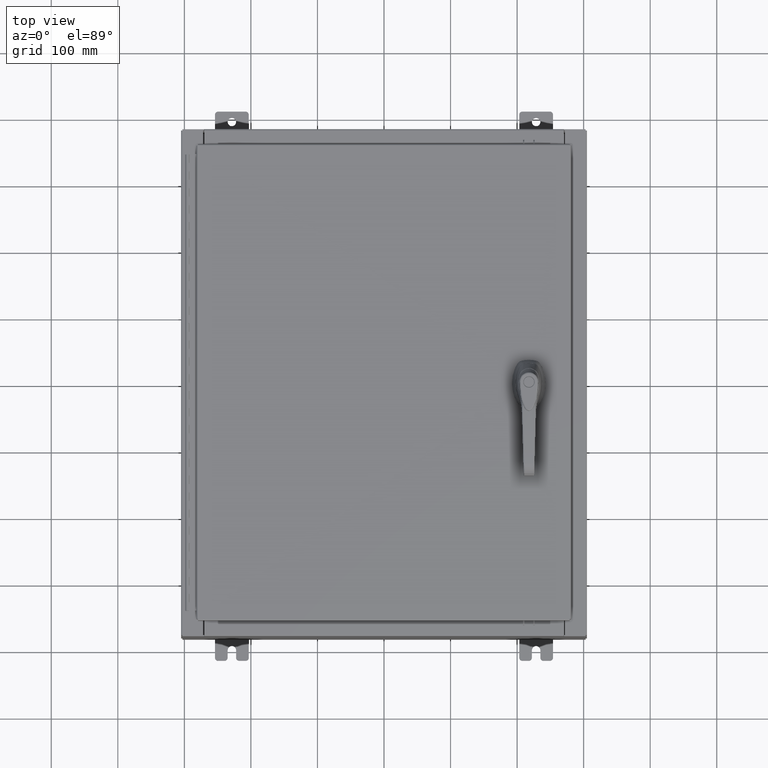
[diagram: clean part render]
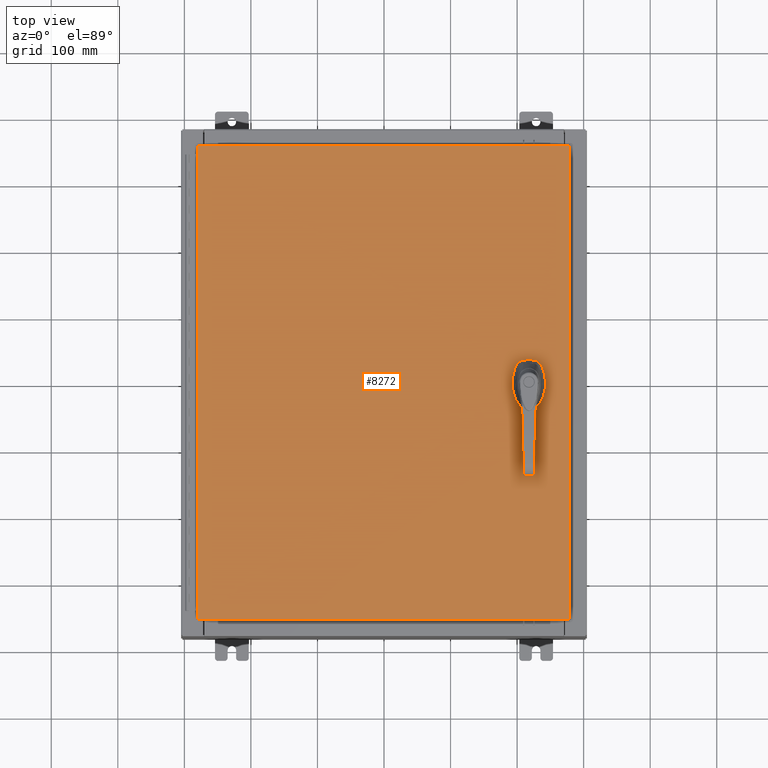
[diagram: same view with one face highlighted and labeled with its STEP entity id]
A machine part, top view. The second image highlights one B-rep face of the part: STEP entity #8272.
In plain terms, the highlighted planar face has unit normal (0, 0, -1).
Its self-contained STEP definition (entity closure, byte-faithful):
#1153 = VERTEX_POINT ( 'NONE', #46878 ) ;
#1626 = CARTESIAN_POINT ( 'NONE',  ( 8.377772629243690300, 0.4029999999999252000, 0.0000000000000000000 ) ) ;
#4411 = VERTEX_POINT ( 'NONE', #97863 ) ;
#4832 = LINE ( 'NONE', #64837, #26369 ) ;
#5099 = LINE ( 'NONE', #32219, #118235 ) ;
#6266 = AXIS2_PLACEMENT_3D ( 'NONE', #37812, #101780, #47035 ) ;
#6530 = VERTEX_POINT ( 'NONE', #94662 ) ;
#7036 = CIRCLE ( 'NONE', #97267, 0.1715000000000011500 ) ;
#7311 = VERTEX_POINT ( 'NONE', #26884 ) ;
#8260 = VECTOR ( 'NONE', #50815, 39.37007874015748100 ) ;
#8272 = ADVANCED_FACE ( 'NONE', ( #22719, #47212, #117240 ), #65126, .F. ) ;
#15552 = ORIENTED_EDGE ( 'NONE', *, *, #113381, .F. ) ;
#16617 = ORIENTED_EDGE ( 'NONE', *, *, #41307, .T. ) ;
#17948 = EDGE_CURVE ( 'NONE', #66367, #7311, #40422, .T. ) ;
#18593 = VECTOR ( 'NONE', #112074, 39.37007874015748100 ) ;
#19685 = EDGE_CURVE ( 'NONE', #44409, #1153, #27407, .T. ) ;
#20590 = EDGE_CURVE ( 'NONE', #105680, #4411, #70240, .T. ) ;
#22719 = FACE_BOUND ( 'NONE', #27523, .T. ) ;
#23008 = DIRECTION ( 'NONE',  ( 0.0000000000000000000, 1.000000000000000000, 0.0000000000000000000 ) ) ;
#23356 = DIRECTION ( 'NONE',  ( -0.0000000000000000000, 0.0000000000000000000, 1.000000000000000000 ) ) ;
#24610 = EDGE_CURVE ( 'NONE', #6530, #55653, #46899, .T. ) ;
#25965 = VERTEX_POINT ( 'NONE', #71631 ) ;
#26351 = CARTESIAN_POINT ( 'NONE',  ( 8.577999999999999400, -1.338000000000000100, 0.0000000000000000000 ) ) ;
#26369 = VECTOR ( 'NONE', #46484, 39.37007874015748100 ) ;
#26504 = ORIENTED_EDGE ( 'NONE', *, *, #24610, .F. ) ;
#26884 = CARTESIAN_POINT ( 'NONE',  ( 8.377772629243690300, -0.4029999999999252000, 0.0000000000000000000 ) ) ;
#27407 = CIRCLE ( 'NONE', #92440, 0.4499999999999156900 ) ;
#27523 = EDGE_LOOP ( 'NONE', ( #26504, #66055 ) ) ;
#29581 = CARTESIAN_POINT ( 'NONE',  ( -10.99029999999999600, -14.00629999999999800, -2.219626494852214000E-016 ) ) ;
#30351 = VERTEX_POINT ( 'NONE', #1626 ) ;
#31508 = VECTOR ( 'NONE', #84683, 39.37007874015748100 ) ;
#31953 = VERTEX_POINT ( 'NONE', #80562 ) ;
#32219 = CARTESIAN_POINT ( 'NONE',  ( 10.99030000000000000, -14.00629999999999800, -2.048885995248197400E-016 ) ) ;
#34430 = LINE ( 'NONE', #43859, #104568 ) ;
#34752 = VECTOR ( 'NONE', #84074, 39.37007874015748100 ) ;
#35601 = DIRECTION ( 'NONE',  ( 1.000000000000000000, 0.0000000000000000000, 0.0000000000000000000 ) ) ;
#37693 = DIRECTION ( 'NONE',  ( -0.0000000000000000000, 0.0000000000000000000, 1.000000000000000000 ) ) ;
#37812 = CARTESIAN_POINT ( 'NONE',  ( 8.577999999999999400, 0.0000000000000000000, 0.0000000000000000000 ) ) ;
#37915 = EDGE_CURVE ( 'NONE', #7311, #94328, #34430, .T. ) ;
#38574 = VECTOR ( 'NONE', #73384, 39.37007874015748100 ) ;
#39115 = CARTESIAN_POINT ( 'NONE',  ( 8.980999999999925300, 2.450686610769032800E-014, 0.0000000000000000000 ) ) ;
#40422 = CIRCLE ( 'NONE', #63152, 0.4499999999999156900 ) ;
#41307 = EDGE_CURVE ( 'NONE', #83491, #105680, #57084, .T. ) ;
#41374 = CARTESIAN_POINT ( 'NONE',  ( 8.175000000000073500, -0.2002273707563079800, 0.0000000000000000000 ) ) ;
#41440 = LINE ( 'NONE', #91328, #38574 ) ;
#42291 = CIRCLE ( 'NONE', #78903, 0.4499999999999156900 ) ;
#42398 = EDGE_LOOP ( 'NONE', ( #92342, #84309, #84533, #74471, #49340, #15552, #77964, #60181 ) ) ;
#43859 = CARTESIAN_POINT ( 'NONE',  ( 0.0000000000000000000, -0.4029999999999252000, 0.0000000000000000000 ) ) ;
#44409 = VERTEX_POINT ( 'NONE', #107711 ) ;
#45741 = CARTESIAN_POINT ( 'NONE',  ( 8.577999999999999400, -1.338000000000000100, 0.0000000000000000000 ) ) ;
#46484 = DIRECTION ( 'NONE',  ( 0.0000000000000000000, -1.000000000000000000, 0.0000000000000000000 ) ) ;
#46766 = DIRECTION ( 'NONE',  ( -1.000000000000000000, 0.0000000000000000000, -0.0000000000000000000 ) ) ;
#46878 = CARTESIAN_POINT ( 'NONE',  ( 8.778227370756310300, 0.4029999999999252000, 0.0000000000000000000 ) ) ;
#46899 = CIRCLE ( 'NONE', #65143, 0.1715000000000011500 ) ;
#47035 = DIRECTION ( 'NONE',  ( 1.000000000000000000, 0.0000000000000000000, 0.0000000000000000000 ) ) ;
#47212 = FACE_OUTER_BOUND ( 'NONE', #90447, .T. ) ;
#47815 = CARTESIAN_POINT ( 'NONE',  ( 8.577999999999999400, 0.0000000000000000000, 0.0000000000000000000 ) ) ;
#49340 = ORIENTED_EDGE ( 'NONE', *, *, #114068, .F. ) ;
#49588 = CARTESIAN_POINT ( 'NONE',  ( 8.577999999999999400, 0.0000000000000000000, 0.0000000000000000000 ) ) ;
#50129 = EDGE_CURVE ( 'NONE', #31953, #83491, #61960, .T. ) ;
#50472 = CARTESIAN_POINT ( 'NONE',  ( 8.406499999999999400, -1.338000000000000100, 0.0000000000000000000 ) ) ;
#50647 = CARTESIAN_POINT ( 'NONE',  ( -10.99030000000000000, 14.00630000000000100, -2.048885995248197400E-016 ) ) ;
#50815 = DIRECTION ( 'NONE',  ( 0.0000000000000000000, -1.000000000000000000, 0.0000000000000000000 ) ) ;
#52032 = CIRCLE ( 'NONE', #6266, 0.4499999999999156900 ) ;
#52960 = EDGE_CURVE ( 'NONE', #44409, #109561, #104553, .T. ) ;
#54891 = DIRECTION ( 'NONE',  ( 1.000000000000000000, 0.0000000000000000000, 0.0000000000000000000 ) ) ;
#55653 = VERTEX_POINT ( 'NONE', #50472 ) ;
#56158 = ORIENTED_EDGE ( 'NONE', *, *, #65606, .T. ) ;
#57084 = LINE ( 'NONE', #77971, #8260 ) ;
#58769 = DIRECTION ( 'NONE',  ( 1.000000000000000000, 0.0000000000000000000, 0.0000000000000000000 ) ) ;
#60181 = ORIENTED_EDGE ( 'NONE', *, *, #19685, .F. ) ;
#61960 = LINE ( 'NONE', #111319, #34752 ) ;
#63152 = AXIS2_PLACEMENT_3D ( 'NONE', #47815, #23356, #69460 ) ;
#64837 = CARTESIAN_POINT ( 'NONE',  ( 8.175000000000073500, 0.0000000000000000000, 0.0000000000000000000 ) ) ;
#65126 = PLANE ( 'NONE',  #80350 ) ;
#65143 = AXIS2_PLACEMENT_3D ( 'NONE', #45741, #109710, #54891 ) ;
#65606 = EDGE_CURVE ( 'NONE', #4411, #31953, #5099, .T. ) ;
#66055 = ORIENTED_EDGE ( 'NONE', *, *, #69871, .F. ) ;
#66367 = VERTEX_POINT ( 'NONE', #41374 ) ;
#69460 = DIRECTION ( 'NONE',  ( 1.000000000000000000, 0.0000000000000000000, 0.0000000000000000000 ) ) ;
#69871 = EDGE_CURVE ( 'NONE', #55653, #6530, #7036, .T. ) ;
#70240 = LINE ( 'NONE', #29581, #18593 ) ;
#71028 = DIRECTION ( 'NONE',  ( 1.000000000000000000, 0.0000000000000000000, 0.0000000000000000000 ) ) ;
#71631 = CARTESIAN_POINT ( 'NONE',  ( 8.175000000000073500, 0.2002273707563079800, 0.0000000000000000000 ) ) ;
#73384 = DIRECTION ( 'NONE',  ( -1.000000000000000000, 0.0000000000000000000, 0.0000000000000000000 ) ) ;
#74471 = ORIENTED_EDGE ( 'NONE', *, *, #17948, .F. ) ;
#75221 = ORIENTED_EDGE ( 'NONE', *, *, #20590, .T. ) ;
#77370 = CARTESIAN_POINT ( 'NONE',  ( 8.980999999999927000, -0.2002273707563079800, 0.0000000000000000000 ) ) ;
#77964 = ORIENTED_EDGE ( 'NONE', *, *, #107403, .F. ) ;
#77971 = CARTESIAN_POINT ( 'NONE',  ( -10.99030000000000000, 14.00630000000000100, -2.048885995248197400E-016 ) ) ;
#78903 = AXIS2_PLACEMENT_3D ( 'NONE', #49588, #113592, #58769 ) ;
#80072 = CARTESIAN_POINT ( 'NONE',  ( 0.0000000000000000000, 0.0000000000000000000, 0.0000000000000000000 ) ) ;
#80350 = AXIS2_PLACEMENT_3D ( 'NONE', #80072, #109008, #46766 ) ;
#80562 = CARTESIAN_POINT ( 'NONE',  ( 10.99030000000000000, 14.00629999999999800, -2.048885995248197400E-016 ) ) ;
#83491 = VERTEX_POINT ( 'NONE', #50647 ) ;
#84074 = DIRECTION ( 'NONE',  ( -1.000000000000000000, -0.0000000000000000000, -0.0000000000000000000 ) ) ;
#84309 = ORIENTED_EDGE ( 'NONE', *, *, #88940, .F. ) ;
#84533 = ORIENTED_EDGE ( 'NONE', *, *, #37915, .F. ) ;
#84683 = DIRECTION ( 'NONE',  ( 2.728745808672812900E-015, -1.000000000000000000, 0.0000000000000000000 ) ) ;
#85274 = ORIENTED_EDGE ( 'NONE', *, *, #50129, .T. ) ;
#88940 = EDGE_CURVE ( 'NONE', #94328, #109561, #52032, .T. ) ;
#90360 = DIRECTION ( 'NONE',  ( -0.0000000000000000000, 0.0000000000000000000, 1.000000000000000000 ) ) ;
#90447 = EDGE_LOOP ( 'NONE', ( #75221, #56158, #85274, #16617 ) ) ;
#91328 = CARTESIAN_POINT ( 'NONE',  ( 0.0000000000000000000, 0.4029999999999252000, 0.0000000000000000000 ) ) ;
#92342 = ORIENTED_EDGE ( 'NONE', *, *, #52960, .T. ) ;
#92430 = CARTESIAN_POINT ( 'NONE',  ( 8.577999999999999400, 0.0000000000000000000, 0.0000000000000000000 ) ) ;
#92440 = AXIS2_PLACEMENT_3D ( 'NONE', #92430, #37693, #101661 ) ;
#94328 = VERTEX_POINT ( 'NONE', #97224 ) ;
#94662 = CARTESIAN_POINT ( 'NONE',  ( 8.749500000000001200, -1.338000000000000100, 0.0000000000000000000 ) ) ;
#97224 = CARTESIAN_POINT ( 'NONE',  ( 8.778227370756310300, -0.4029999999999252000, 0.0000000000000000000 ) ) ;
#97267 = AXIS2_PLACEMENT_3D ( 'NONE', #26351, #90360, #35601 ) ;
#97345 = CARTESIAN_POINT ( 'NONE',  ( -10.99029999999999800, -14.00629999999999800, -2.048885995248197400E-016 ) ) ;
#97863 = CARTESIAN_POINT ( 'NONE',  ( 10.99030000000000000, -14.00629999999999800, -2.048885995248197400E-016 ) ) ;
#101661 = DIRECTION ( 'NONE',  ( 1.000000000000000000, 0.0000000000000000000, 0.0000000000000000000 ) ) ;
#101780 = DIRECTION ( 'NONE',  ( -0.0000000000000000000, 0.0000000000000000000, 1.000000000000000000 ) ) ;
#104553 = LINE ( 'NONE', #39115, #31508 ) ;
#104568 = VECTOR ( 'NONE', #71028, 39.37007874015748100 ) ;
#105680 = VERTEX_POINT ( 'NONE', #97345 ) ;
#107403 = EDGE_CURVE ( 'NONE', #1153, #30351, #41440, .T. ) ;
#107711 = CARTESIAN_POINT ( 'NONE',  ( 8.980999999999925300, 0.2002273707563080300, 0.0000000000000000000 ) ) ;
#109008 = DIRECTION ( 'NONE',  ( 0.0000000000000000000, 0.0000000000000000000, -1.000000000000000000 ) ) ;
#109561 = VERTEX_POINT ( 'NONE', #77370 ) ;
#109710 = DIRECTION ( 'NONE',  ( -0.0000000000000000000, 0.0000000000000000000, 1.000000000000000000 ) ) ;
#111319 = CARTESIAN_POINT ( 'NONE',  ( 10.99030000000000000, 14.00629999999999800, -2.048885995248197400E-016 ) ) ;
#112074 = DIRECTION ( 'NONE',  ( 1.000000000000000000, -0.0000000000000000000, -0.0000000000000000000 ) ) ;
#113381 = EDGE_CURVE ( 'NONE', #30351, #25965, #42291, .T. ) ;
#113592 = DIRECTION ( 'NONE',  ( -0.0000000000000000000, 0.0000000000000000000, 1.000000000000000000 ) ) ;
#114068 = EDGE_CURVE ( 'NONE', #25965, #66367, #4832, .T. ) ;
#117240 = FACE_BOUND ( 'NONE', #42398, .T. ) ;
#118235 = VECTOR ( 'NONE', #23008, 39.37007874015748100 ) ;